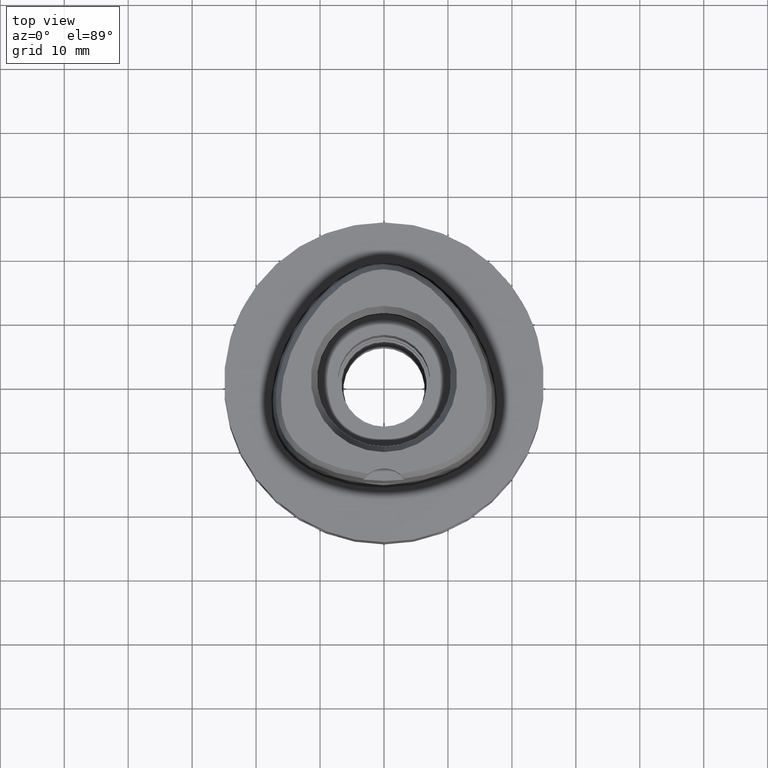
[diagram: clean part render]
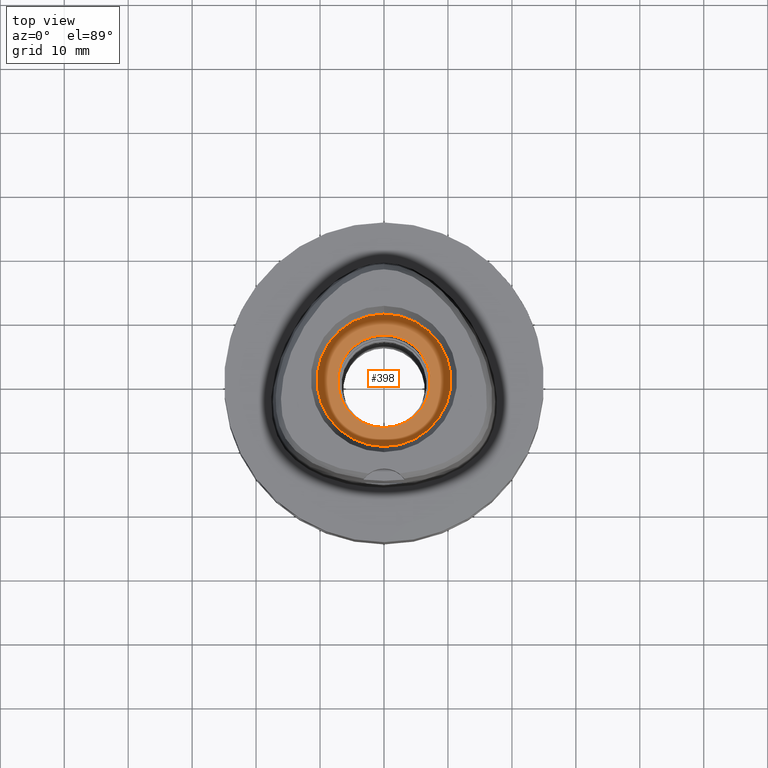
[diagram: same view with one face highlighted and labeled with its STEP entity id]
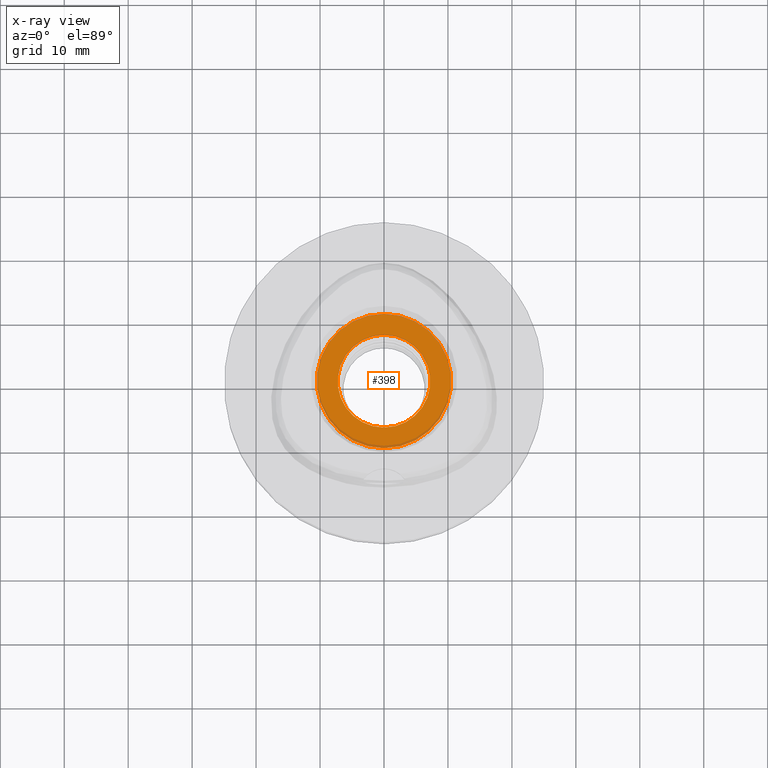
[diagram: x-ray of the same camera — body ghosted, the highlighted face saturated]
A machine part, top view. The second image highlights one B-rep face of the part: STEP entity #398.
The next image is the same camera in x-ray: the body ghosted, the highlighted face saturated — about 3% of this face is hidden behind the body in this view.
In plain terms, the highlighted planar face has unit normal (0, 0, -1).
Its self-contained STEP definition (entity closure, byte-faithful):
#100 = EDGE_CURVE ( 'NONE', #1535, #3974, #824, .T. ) ;
#371 = DIRECTION ( 'NONE',  ( 0.0000000000000000000, 1.000000000000000000, 0.0000000000000000000 ) ) ;
#398 = ADVANCED_FACE ( 'NONE', ( #4651, #2806 ), #3154, .F. ) ;
#612 = DIRECTION ( 'NONE',  ( 0.0000000000000000000, -1.000000000000000000, 0.0000000000000000000 ) ) ;
#709 = DIRECTION ( 'NONE',  ( 0.0000000000000000000, 0.0000000000000000000, 1.000000000000000000 ) ) ;
#778 = EDGE_CURVE ( 'NONE', #2253, #3862, #3386, .T. ) ;
#824 = CIRCLE ( 'NONE', #2222, 7.250000000000000000 ) ;
#839 = EDGE_CURVE ( 'NONE', #3862, #2253, #2684, .T. ) ;
#896 = EDGE_LOOP ( 'NONE', ( #4313, #2771 ) ) ;
#1401 = DIRECTION ( 'NONE',  ( 0.0000000000000000000, 0.0000000000000000000, -1.000000000000000000 ) ) ;
#1424 = CARTESIAN_POINT ( 'NONE',  ( 0.0000000000000000000, 1.610410540878999754E-14, 10.00000000000000000 ) ) ;
#1535 = VERTEX_POINT ( 'NONE', #1561 ) ;
#1561 = CARTESIAN_POINT ( 'NONE',  ( 0.0000000000000000000, -7.250000000000000000, 10.00000000000000000 ) ) ;
#1703 = DIRECTION ( 'NONE',  ( 0.0000000000000000000, 0.0000000000000000000, -1.000000000000000000 ) ) ;
#2189 = DIRECTION ( 'NONE',  ( 0.0000000000000000000, -1.000000000000000000, 0.0000000000000000000 ) ) ;
#2210 = CARTESIAN_POINT ( 'NONE',  ( 0.0000000000000000000, 1.610410540878999754E-14, 10.00000000000000000 ) ) ;
#2222 = AXIS2_PLACEMENT_3D ( 'NONE', #2620, #709, #2189 ) ;
#2253 = VERTEX_POINT ( 'NONE', #3520 ) ;
#2390 = AXIS2_PLACEMENT_3D ( 'NONE', #2210, #4388, #371 ) ;
#2487 = DIRECTION ( 'NONE',  ( 0.0000000000000000000, 1.000000000000000000, 0.0000000000000000000 ) ) ;
#2510 = CARTESIAN_POINT ( 'NONE',  ( 0.0000000000000000000, 1.610410540878999754E-14, 10.00000000000000000 ) ) ;
#2620 = CARTESIAN_POINT ( 'NONE',  ( 0.0000000000000000000, 1.610410540878999754E-14, 10.00000000000000000 ) ) ;
#2684 = CIRCLE ( 'NONE', #3997, 10.50000000000000000 ) ;
#2771 = ORIENTED_EDGE ( 'NONE', *, *, #778, .F. ) ;
#2806 = FACE_BOUND ( 'NONE', #3337, .T. ) ;
#3154 = PLANE ( 'NONE',  #3693 ) ;
#3195 = CARTESIAN_POINT ( 'NONE',  ( 0.0000000000000000000, 1.347111479061999855E-14, 10.00000000000000000 ) ) ;
#3337 = EDGE_LOOP ( 'NONE', ( #3497, #4665 ) ) ;
#3386 = CIRCLE ( 'NONE', #3920, 10.50000000000000000 ) ;
#3497 = ORIENTED_EDGE ( 'NONE', *, *, #100, .F. ) ;
#3520 = CARTESIAN_POINT ( 'NONE',  ( 0.0000000000000000000, 10.50000000000000000, 10.00000000000000000 ) ) ;
#3587 = DIRECTION ( 'NONE',  ( 0.0000000000000000000, 0.0000000000000000000, -1.000000000000000000 ) ) ;
#3600 = EDGE_CURVE ( 'NONE', #3974, #1535, #3634, .T. ) ;
#3634 = CIRCLE ( 'NONE', #2390, 7.250000000000000000 ) ;
#3693 = AXIS2_PLACEMENT_3D ( 'NONE', #3195, #1703, #612 ) ;
#3862 = VERTEX_POINT ( 'NONE', #4528 ) ;
#3897 = CARTESIAN_POINT ( 'NONE',  ( 0.0000000000000000000, 7.250000000000000000, 10.00000000000000000 ) ) ;
#3920 = AXIS2_PLACEMENT_3D ( 'NONE', #1424, #3587, #2487 ) ;
#3974 = VERTEX_POINT ( 'NONE', #3897 ) ;
#3997 = AXIS2_PLACEMENT_3D ( 'NONE', #2510, #1401, #4400 ) ;
#4313 = ORIENTED_EDGE ( 'NONE', *, *, #839, .F. ) ;
#4388 = DIRECTION ( 'NONE',  ( 0.0000000000000000000, 0.0000000000000000000, 1.000000000000000000 ) ) ;
#4400 = DIRECTION ( 'NONE',  ( 0.0000000000000000000, -1.000000000000000000, 0.0000000000000000000 ) ) ;
#4528 = CARTESIAN_POINT ( 'NONE',  ( 0.0000000000000000000, -10.50000000000000000, 10.00000000000000000 ) ) ;
#4651 = FACE_OUTER_BOUND ( 'NONE', #896, .T. ) ;
#4665 = ORIENTED_EDGE ( 'NONE', *, *, #3600, .F. ) ;